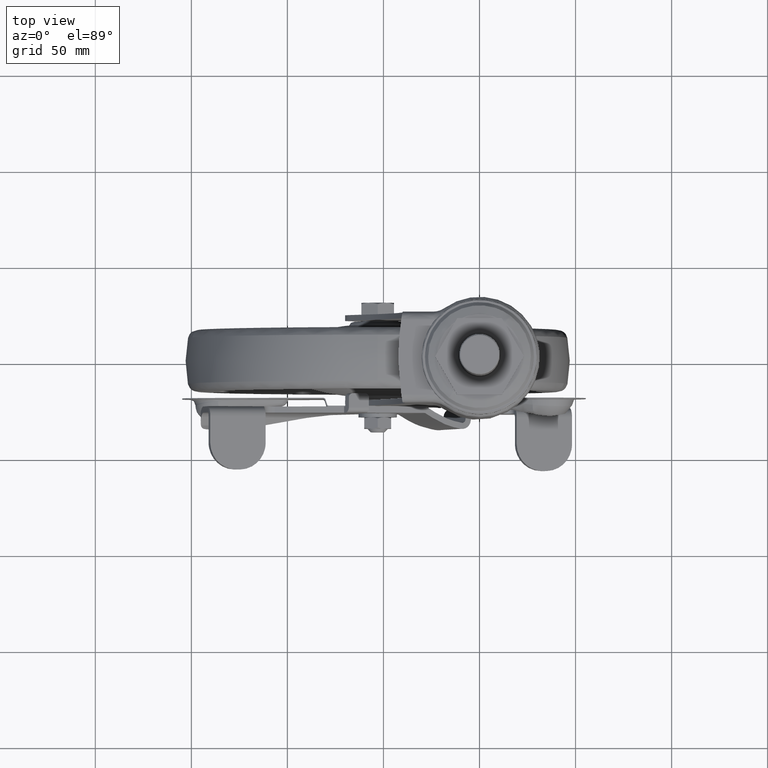
[diagram: clean part render]
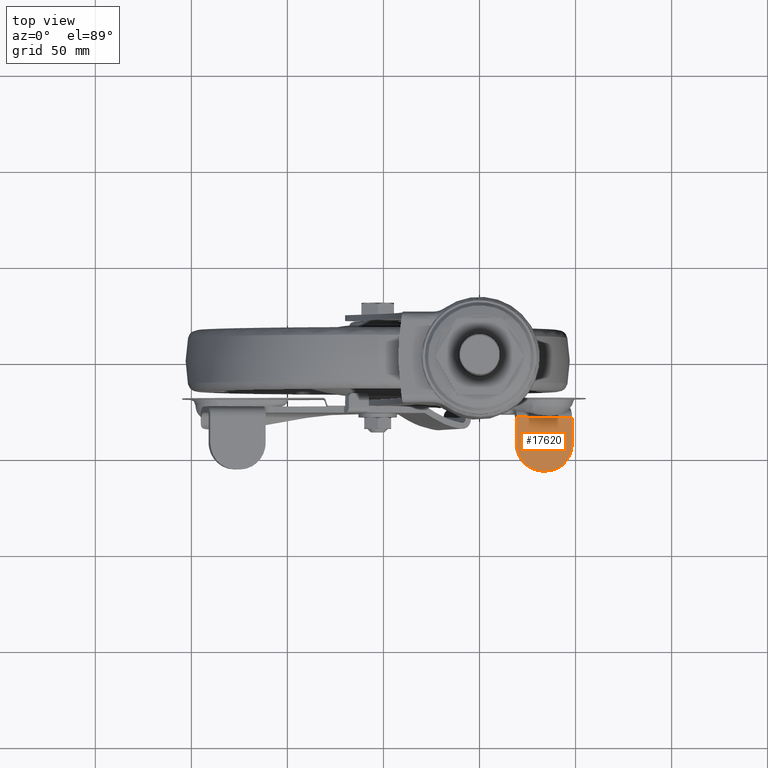
[diagram: same view with one face highlighted and labeled with its STEP entity id]
A machine part, top view. The second image highlights one B-rep face of the part: STEP entity #17620.
In plain terms, the highlighted face is a freeform B-spline surface patch.
Its self-contained STEP definition (entity closure, byte-faithful):
#17185=CARTESIAN_POINT('',(48.172316000000002,-29.195770000000000,-140.454170044952410));
#17186=VERTEX_POINT('',#17185);
#17218=CARTESIAN_POINT('',(19.345727999999902,-29.195770000000000,-132.145875044952390));
#17219=VERTEX_POINT('',#17218);
#17233=CARTESIAN_POINT('',(48.172316000000002,-29.195770000000000,-140.454170044952410));
#17234=CARTESIAN_POINT('',(19.345727999999902,-29.195770000000000,-132.145875044952390));
#17235=QUASI_UNIFORM_CURVE('',1,(#17233,#17234),.UNSPECIFIED.,.F.,.U.);
#17236=EDGE_CURVE('',#17186,#17219,#17235,.T.);
#17272=CARTESIAN_POINT('',(32.798136170322550,-57.195756000000003,-136.023079504233410));
#17273=VERTEX_POINT('',#17272);
#17279=CARTESIAN_POINT('',(19.345727999999902,-43.195756000000053,-132.145875044952390));
#17280=VERTEX_POINT('',#17279);
#17281=CARTESIAN_POINT('',(19.345727999999902,-43.195756000000053,-132.145875044952390));
#17282=CARTESIAN_POINT('',(19.345728000000971,-57.195756000000046,-132.145875044952850));
#17283=CARTESIAN_POINT('',(32.798136170322550,-57.195756000000053,-136.023079504233410));
#17291=(BOUNDED_CURVE()B_SPLINE_CURVE(2,(#17281,#17282,#17283),.UNSPECIFIED.,.F.,.U.)CURVE()GEOMETRIC_REPRESENTATION_ITEM()QUASI_UNIFORM_CURVE()RATIONAL_B_SPLINE_CURVE((1.0,0.707106781186547,1.0))REPRESENTATION_ITEM(''));
#17292=EDGE_CURVE('',#17280,#17273,#17291,.T.);
#17316=CARTESIAN_POINT('',(34.719907829678348,-57.195756000000003,-136.576965585672010));
#17317=VERTEX_POINT('',#17316);
#17318=CARTESIAN_POINT('',(48.172316000000002,-43.195756000000053,-140.454170044952410));
#17319=VERTEX_POINT('',#17318);
#17320=CARTESIAN_POINT('',(34.719907829678299,-57.195756000000053,-136.576965585672010));
#17321=CARTESIAN_POINT('',(48.172315999999888,-57.195756000000046,-140.454170044952520));
#17322=CARTESIAN_POINT('',(48.172315999999888,-43.195756000000053,-140.454170044952490));
#17330=(BOUNDED_CURVE()B_SPLINE_CURVE(2,(#17320,#17321,#17322),.UNSPECIFIED.,.F.,.U.)CURVE()GEOMETRIC_REPRESENTATION_ITEM()QUASI_UNIFORM_CURVE()RATIONAL_B_SPLINE_CURVE((1.0,0.707106781186547,1.0))REPRESENTATION_ITEM(''));
#17331=EDGE_CURVE('',#17317,#17319,#17330,.T.);
#17374=CARTESIAN_POINT('',(32.798136170322550,-57.195756000000003,-136.023079504233410));
#17375=CARTESIAN_POINT('',(34.719907829678348,-57.195756000000003,-136.576965585672010));
#17376=QUASI_UNIFORM_CURVE('',1,(#17374,#17375),.UNSPECIFIED.,.F.,.U.);
#17377=EDGE_CURVE('',#17273,#17317,#17376,.T.);
#17586=CARTESIAN_POINT('',(48.172316000000002,-43.195756000000053,-140.454170044952410));
#17587=CARTESIAN_POINT('',(48.172316000000002,-29.195770000000000,-140.454170044952410));
#17588=QUASI_UNIFORM_CURVE('',1,(#17586,#17587),.UNSPECIFIED.,.F.,.U.);
#17589=EDGE_CURVE('',#17319,#17186,#17588,.T.);
#17603=CARTESIAN_POINT('',(17.905839985271410,-58.594355246430602,-131.730875725805500));
#17604=CARTESIAN_POINT('',(49.612204787917797,-58.594355246430602,-140.869169586945300));
#17605=CARTESIAN_POINT('',(17.905839985271410,-27.797170002551251,-131.730875725805500));
#17606=CARTESIAN_POINT('',(49.612204787917797,-27.797170002551251,-140.869169586945300));
#17607=B_SPLINE_SURFACE_WITH_KNOTS('',1,1,((#17603,#17605),(#17604,#17606)),.UNSPECIFIED.,.F.,.F.,.U.,(2,2),(2,2),(0.0,32.996999616496034),(0.0,30.797185243879341),.UNSPECIFIED.);
#17608=ORIENTED_EDGE('',*,*,#17589,.T.);
#17609=ORIENTED_EDGE('',*,*,#17236,.T.);
#17610=CARTESIAN_POINT('',(19.345727999999902,-43.195756000000053,-132.145875044952390));
#17611=CARTESIAN_POINT('',(19.345727999999902,-29.195770000000000,-132.145875044952390));
#17612=QUASI_UNIFORM_CURVE('',1,(#17610,#17611),.UNSPECIFIED.,.F.,.U.);
#17613=EDGE_CURVE('',#17280,#17219,#17612,.T.);
#17614=ORIENTED_EDGE('',*,*,#17613,.F.);
#17615=ORIENTED_EDGE('',*,*,#17292,.T.);
#17616=ORIENTED_EDGE('',*,*,#17377,.T.);
#17617=ORIENTED_EDGE('',*,*,#17331,.T.);
#17618=EDGE_LOOP('',(#17608,#17609,#17614,#17615,#17616,#17617));
#17619=FACE_OUTER_BOUND('',#17618,.T.);
#17620=ADVANCED_FACE('',(#17619),#17607,.T.);